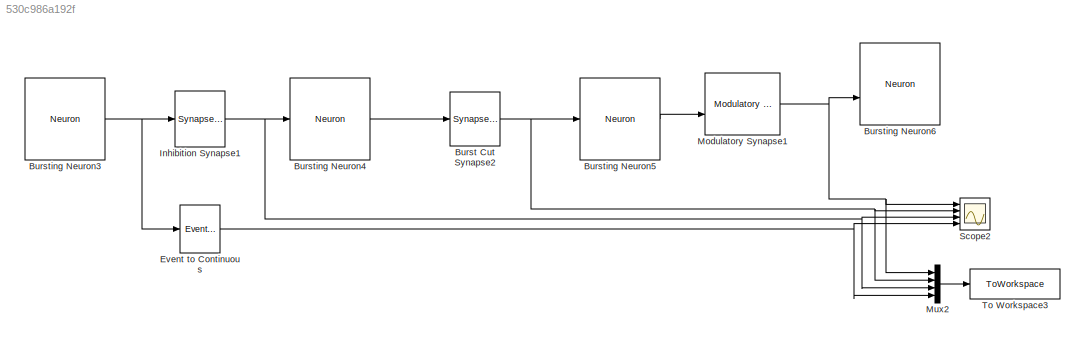
MODEL slx_530c986a192f
KIND model
CONFIG AbsTol = auto
CONFIG EnableMultiTasking = off
CONFIG FixedStep = auto
CONFIG MaxStep = auto
CONFIG MinStep = auto
CONFIG RelTol = 1e-3
CONFIG SampleTimeConstraint = Unconstrained
CONFIG SolverName = VariableStepAuto
CONFIG StartTime = 0.0
CONFIG StopTime = 20
WORKSPACE source: mxarray member
WORKSPACE a = 0.15
WORKSPACE gsyn_base = -1
WORKSPACE loss_prob = 0
BLOCK [Reference] Burst Cut Synapse2  REF=neuromorphic_blocks/Neural Blocks/Synapse with Depression  (lib defined in slx_48105648e755)
  Ports = [1, 1]
  SourceBlock = neuromorphic_blocks/Neural Blocks/Synapse with Depression
  SourceProductName = Neuromorphic Toolbox
  SourceType = Synapse with Depression
BLOCK [Reference] Bursting Neuron3  REF=neuromorphic_blocks/Neural Blocks/Neuron  (lib defined in slx_48105648e755)
  Ports = [1, 1]
  SourceBlock = neuromorphic_blocks/Neural Blocks/Neuron
  SourceProductName = Neuromorphic Toolbox
  SourceType = Neuron
BLOCK [Reference] Bursting Neuron4  REF=neuromorphic_blocks/Neural Blocks/Neuron  (lib defined in slx_48105648e755)
  Ports = [1, 1]
  SourceBlock = neuromorphic_blocks/Neural Blocks/Neuron
  SourceProductName = Neuromorphic Toolbox
  SourceType = Neuron
BLOCK [Reference] Bursting Neuron5  REF=neuromorphic_blocks/Neural Blocks/Neuron  (lib defined in slx_48105648e755)
  Ports = [1, 1]
  SourceBlock = neuromorphic_blocks/Neural Blocks/Neuron
  SourceProductName = Neuromorphic Toolbox
  SourceType = Neuron
BLOCK [Reference] Bursting Neuron6  REF=neuromorphic_blocks/Neural Blocks/Neuron  (lib defined in slx_48105648e755)
  Ports = [2, 1]
  SourceBlock = neuromorphic_blocks/Neural Blocks/Neuron
  SourceProductName = Neuromorphic Toolbox
  SourceType = Neuron
BLOCK [Reference] Event to Continuous  REF=neuromorphic_blocks/Events Transmission Blocks/Event to Continuous  (lib defined in slx_48105648e755)
  Ports = [1, 1]
  SourceBlock = neuromorphic_blocks/Events Transmission Blocks/Event to Continuous
  SourceProductName = Neuromorphic Toolbox
  SourceType = Event to Continuous
BLOCK [Reference] Inhibition Synapse1  REF=neuromorphic_blocks/Neural Blocks/Synapse with Facilitation  (lib defined in slx_48105648e755)
  Ports = [1, 1]
  SourceBlock = neuromorphic_blocks/Neural Blocks/Synapse with Facilitation
  SourceProductName = Neuromorphic Toolbox
  SourceType = Synapse with Facilitation
BLOCK [Reference] Modulatory Synapse1  REF=neuromorphic_blocks/Neural Blocks/Modulatory Synapse  (lib defined in slx_48105648e755)
  Ports = [2, 1]
  SourceBlock = neuromorphic_blocks/Neural Blocks/Modulatory Synapse
  SourceProductName = Neuromorphic Toolbox
  SourceType = Modulatory Synapse
BLOCK [Mux] Mux2
  DisplayOption = bar
  Ports = [4, 1]
BLOCK [Scope] Scope2
  Floating = off
  NumInputPorts = 4
  Ports = [4]
  ScopeSpecificationString = Simulink.scopes.TimeScopeBlockCfg('CurrentConfiguration', extmgr.ConfigurationSet(extmgr.Configuration('Core','General UI',true),extmgr.Configuration('Core','Source UI',true),extmgr.Configuration('Sources','WiredSimulink',true,'DataLoggingVariableName','ScopeData1'),extmgr.Configuration('Visuals','Time Domain',true,'SerializedDisplays',{struct('MinYLimReal','1.84698','MaxYLimReal','2.57256','YLabe...<+3464ch>
BLOCK [ToWorkspace] To Workspace3
  FixptAsFi = on
  MaxDataPoints = inf
  Ports = [1]
  SampleTime = -1
  SaveFormat = Structure With Time
  VariableName = synapses
NET Burst Cut Synapse2:1 -> Bursting Neuron5:1, Mux2:2, Scope2:2
NET Bursting Neuron3:1 -> Event to Continuous:1, Inhibition Synapse1:1
LINE Bursting Neuron4:1 -> Burst Cut Synapse2:1
LINE Bursting Neuron5:1 -> Modulatory Synapse1:2
NET Event to Continuous:1 -> Mux2:4, Scope2:4
NET Inhibition Synapse1:1 -> Bursting Neuron4:1, Mux2:3, Scope2:3
NET Modulatory Synapse1:1 -> Bursting Neuron6:2, Mux2:1, Scope2:1
LINE Mux2:1 -> To Workspace3:1
note: NET lines group one-source signal fan-out (src -> all destinations, sorted); 1:1 wires keep LINE
